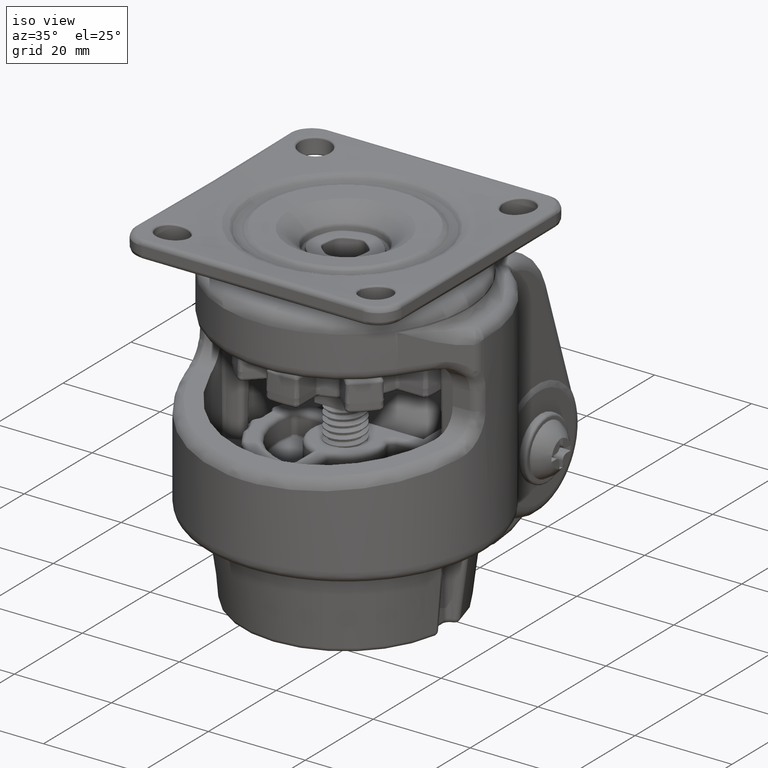
[diagram: clean part render]
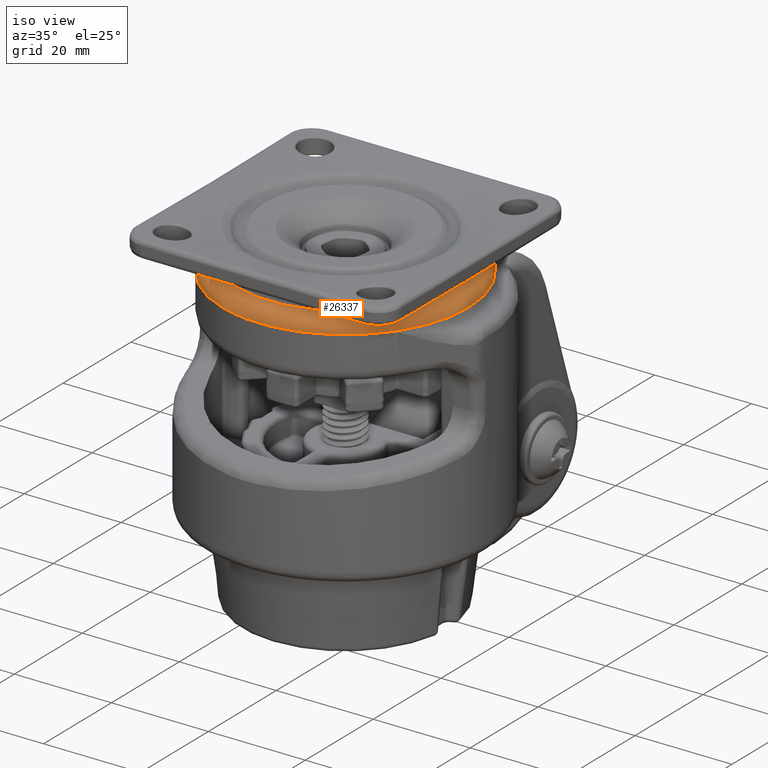
[diagram: same view with one face highlighted and labeled with its STEP entity id]
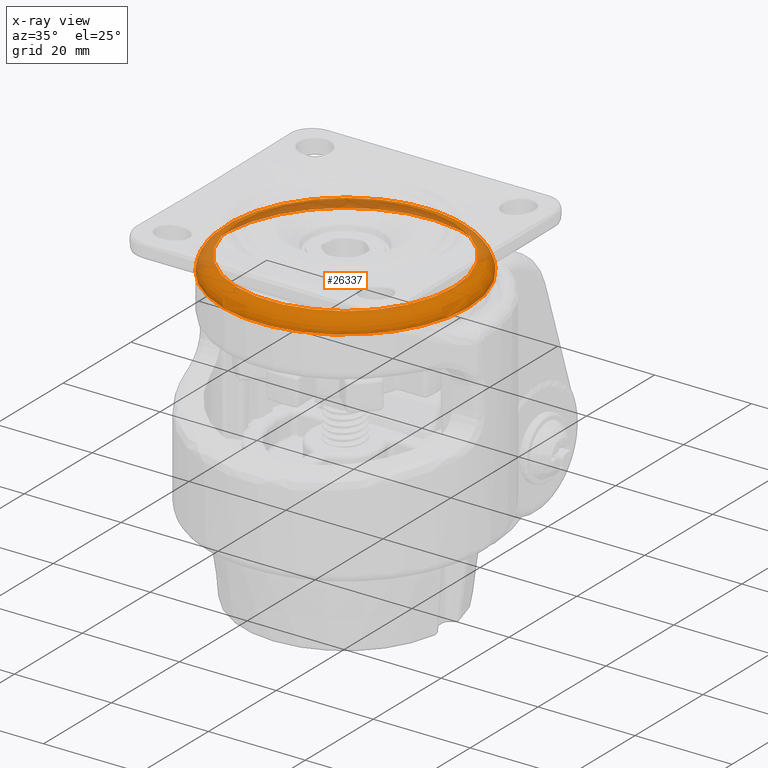
[diagram: x-ray of the same camera — body ghosted, the highlighted face saturated]
A machine part, iso view. The second image highlights one B-rep face of the part: STEP entity #26337.
The next image is the same camera in x-ray: the body ghosted, the highlighted face saturated — about 25% of this face is hidden behind the body in this view.
In plain terms, the highlighted toroidal blend (fillet) surface has major radius 22.3659 mm and minor (blend) radius 3 mm.
Its self-contained STEP definition (entity closure, byte-faithful):
#788=TOROIDAL_SURFACE('',#28621,22.3659381053473,3.);
#1415=FACE_BOUND('',#8484,.T.);
#6785=FACE_OUTER_BOUND('',#8483,.T.);
#8483=EDGE_LOOP('',(#14241));
#8484=EDGE_LOOP('',(#14242));
#14241=ORIENTED_EDGE('',*,*,#19874,.T.);
#14242=ORIENTED_EDGE('',*,*,#19875,.T.);
#19874=EDGE_CURVE('',#23062,#23062,#24664,.T.);
#19875=EDGE_CURVE('',#23063,#23063,#24665,.T.);
#23062=VERTEX_POINT('',#64870);
#23063=VERTEX_POINT('',#64872);
#24664=CIRCLE('',#28622,25.3659381053473);
#24665=CIRCLE('',#28623,22.3659381053473);
#26337=ADVANCED_FACE('',(#6785,#1415),#788,.T.);
#28621=AXIS2_PLACEMENT_3D('',#64869,#33472,#33473);
#28622=AXIS2_PLACEMENT_3D('',#64871,#33474,#33475);
#28623=AXIS2_PLACEMENT_3D('',#64873,#33476,#33477);
#33472=DIRECTION('center_axis',(0.,0.,1.));
#33473=DIRECTION('ref_axis',(-1.,0.,0.));
#33474=DIRECTION('center_axis',(0.,0.,1.));
#33475=DIRECTION('ref_axis',(-1.,0.,0.));
#33476=DIRECTION('center_axis',(0.,0.,-1.));
#33477=DIRECTION('ref_axis',(-1.,0.,0.));
#64869=CARTESIAN_POINT('Origin',(11.0267015888369,-6.79677513466949,9.05892205209027));
#64870=CARTESIAN_POINT('',(36.3926396941842,-6.79677513466949,9.05892205209027));
#64871=CARTESIAN_POINT('Origin',(11.0267015888369,-6.79677513466949,9.05892205209027));
#64872=CARTESIAN_POINT('',(33.3926396941842,-6.79677513466949,12.0589220520903));
#64873=CARTESIAN_POINT('Origin',(11.0267015888369,-6.79677513466949,12.0589220520903));